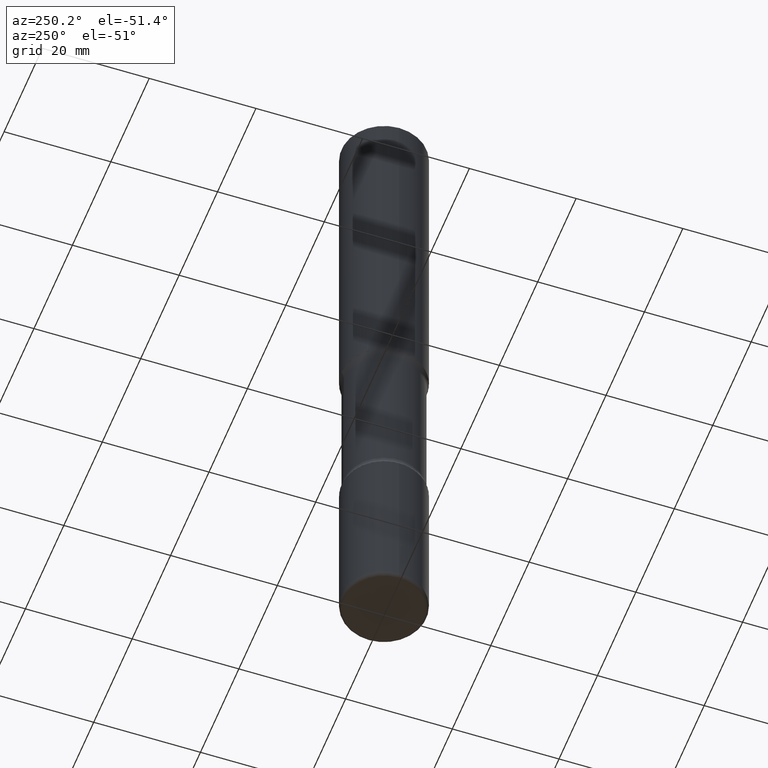
[diagram: clean part render]
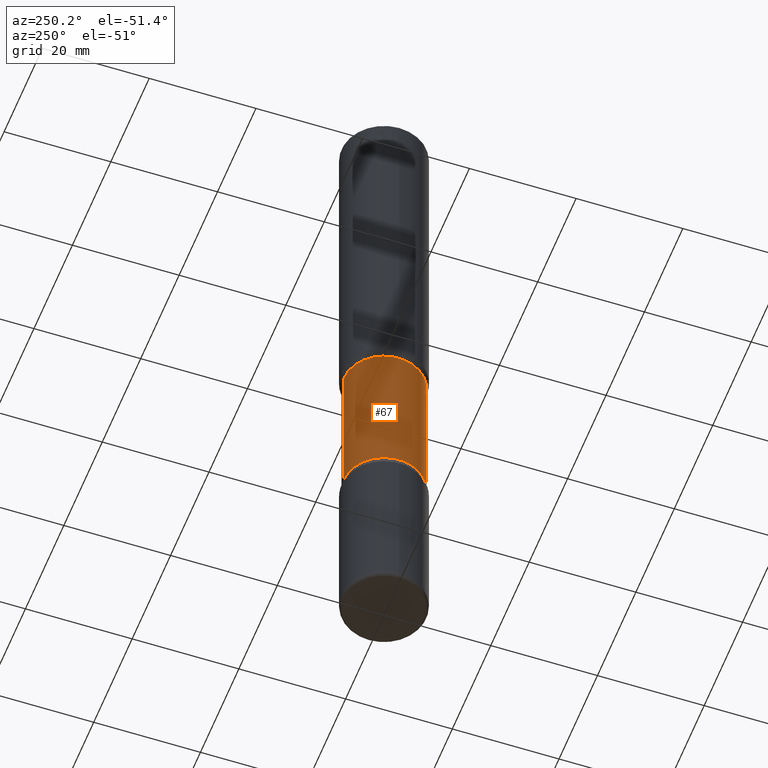
[diagram: same view with one face highlighted and labeled with its STEP entity id]
A machine part, auxiliary view. The second image highlights one B-rep face of the part: STEP entity #67.
In plain terms, the highlighted cylindrical surface (partial cylindrical patch) has radius 7.5406 mm, axis along (0, -0, -1).
Its self-contained STEP definition (entity closure, byte-faithful):
#6 = VECTOR ( 'NONE', #405, 39.37007874015748143 ) ;
#30 = VERTEX_POINT ( 'NONE', #392 ) ;
#34 = AXIS2_PLACEMENT_3D ( 'NONE', #388, #475, #91 ) ;
#67 = ADVANCED_FACE ( 'NONE', ( #335 ), #297, .T. ) ;
#90 = DIRECTION ( 'NONE',  ( 2.521457479434076939E-29, -3.382661233743975076E-15, -1.000000000000000000 ) ) ;
#91 = DIRECTION ( 'NONE',  ( 6.982962677686266711E-15, 1.000000000000000000, -3.680805717779217644E-15 ) ) ;
#107 = CARTESIAN_POINT ( 'NONE',  ( -2.036710343088299976E-15, -0.2968750000000173195, -4.999999999999999112 ) ) ;
#133 = ORIENTED_EDGE ( 'NONE', *, *, #393, .F. ) ;
#195 = CIRCLE ( 'NONE', #390, 0.2968750000000000000 ) ;
#205 = VERTEX_POINT ( 'NONE', #496 ) ;
#217 = ORIENTED_EDGE ( 'NONE', *, *, #278, .T. ) ;
#218 = DIRECTION ( 'NONE',  ( 6.982962677686265133E-15, 1.000000000000000000, -3.680805717779217644E-15 ) ) ;
#219 = DIRECTION ( 'NONE',  ( 2.521457479434076939E-29, -3.382661233743974681E-15, -1.000000000000000000 ) ) ;
#255 = CARTESIAN_POINT ( 'NONE',  ( 1.232232987248685960E-28, -1.732138156284176685E-14, -5.000000000000000000 ) ) ;
#278 = EDGE_CURVE ( 'NONE', #548, #30, #396, .T. ) ;
#297 = CYLINDRICAL_SURFACE ( 'NONE', #457, 0.2968750000000000000 ) ;
#311 = EDGE_LOOP ( 'NONE', ( #429, #343, #217, #133 ) ) ;
#335 = FACE_OUTER_BOUND ( 'NONE', #311, .T. ) ;
#343 = ORIENTED_EDGE ( 'NONE', *, *, #424, .T. ) ;
#345 = CIRCLE ( 'NONE', #34, 0.2968750000000000000 ) ;
#347 = DIRECTION ( 'NONE',  ( 2.521457479434076939E-29, -3.382661233743975076E-15, -1.000000000000000000 ) ) ;
#388 = CARTESIAN_POINT ( 'NONE',  ( 6.171273093058203090E-29, -9.069431456984199816E-15, -2.560515364784490711 ) ) ;
#390 = AXIS2_PLACEMENT_3D ( 'NONE', #482, #347, #218 ) ;
#392 = CARTESIAN_POINT ( 'NONE',  ( 2.073067044938200360E-15, 0.2968749999999871214, -3.689484635215509289 ) ) ;
#393 = EDGE_CURVE ( 'NONE', #557, #30, #195, .T. ) ;
#396 = LINE ( 'NONE', #559, #555 ) ;
#402 = LINE ( 'NONE', #107, #6 ) ;
#405 = DIRECTION ( 'NONE',  ( 2.521457479434076939E-29, -3.382661233743974681E-15, -1.000000000000000000 ) ) ;
#424 = EDGE_CURVE ( 'NONE', #205, #548, #345, .T. ) ;
#429 = ORIENTED_EDGE ( 'NONE', *, *, #495, .F. ) ;
#432 = DIRECTION ( 'NONE',  ( 6.982962677686266711E-15, 1.000000000000000000, -3.680805717779217644E-15 ) ) ;
#457 = AXIS2_PLACEMENT_3D ( 'NONE', #255, #90, #432 ) ;
#475 = DIRECTION ( 'NONE',  ( 2.521457479434076939E-29, -3.382661233743975076E-15, -1.000000000000000000 ) ) ;
#482 = CARTESIAN_POINT ( 'NONE',  ( 9.017921104037724021E-29, -1.288835204215942242E-14, -3.689484635215508401 ) ) ;
#484 = CARTESIAN_POINT ( 'NONE',  ( 2.073067044938171961E-15, 0.2968749999999909517, -2.560515364784492043 ) ) ;
#495 = EDGE_CURVE ( 'NONE', #205, #557, #402, .T. ) ;
#496 = CARTESIAN_POINT ( 'NONE',  ( -2.090307983695953569E-15, -0.2968750000000091038, -2.560515364784489822 ) ) ;
#533 = CARTESIAN_POINT ( 'NONE',  ( -2.090307983695922804E-15, -0.2968750000000128786, -3.689484635215507069 ) ) ;
#548 = VERTEX_POINT ( 'NONE', #484 ) ;
#555 = VECTOR ( 'NONE', #219, 39.37007874015748143 ) ;
#557 = VERTEX_POINT ( 'NONE', #533 ) ;
#559 = CARTESIAN_POINT ( 'NONE',  ( 2.073067044938233492E-15, 0.2968749999999827360, -5.000000000000000888 ) ) ;